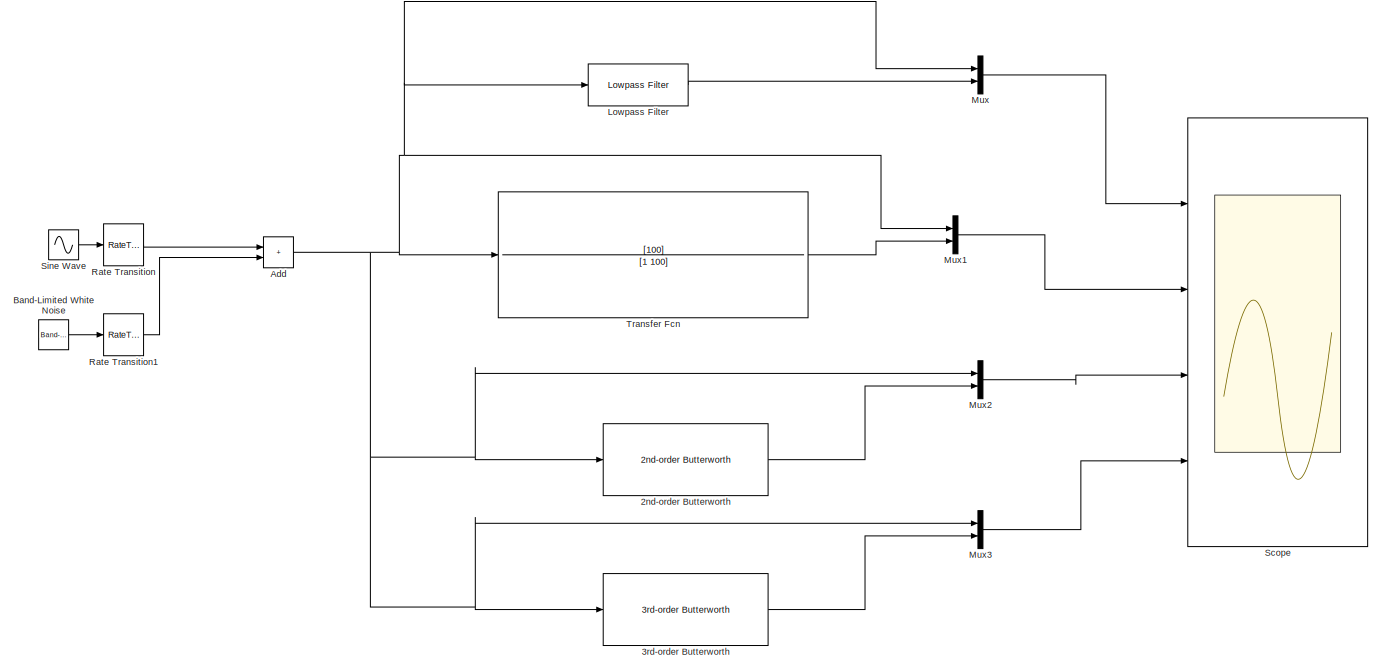
[diagram: root canvas - part 1/2, full width, top band]
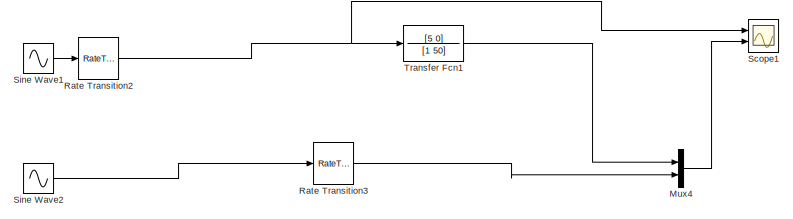
[diagram: root canvas - part 2/2, bottom center region]
MODEL slx_ac58851095d8
KIND model
CONFIG AbsTol = auto
CONFIG EnableMultiTasking = off
CONFIG FixedStep = auto
CONFIG MaxStep = auto
CONFIG MinStep = auto
CONFIG RelTol = 1e-3
CONFIG SampleTimeConstraint = Unconstrained
CONFIG SolverName = VariableStepAuto
CONFIG StartTime = 0.0
CONFIG StopTime = 5
BLOCK [Reference] 2nd-order Butterworth  REF=Butterworth/2nd-order Butterworth
  Ports = [1, 1]
  SourceBlock = Butterworth/2nd-order Butterworth
BLOCK [Reference] 3rd-order Butterworth  REF=Butterworth/3rd-order Butterworth
  Ports = [1, 1]
  SourceBlock = Butterworth/3rd-order Butterworth
BLOCK [Sum] Add
  IconShape = rectangular
  Ports = [2, 1]
BLOCK [Reference] Band-Limited White Noise  REF=simulink/Sources/Band-Limited
White Noise
  Ports = [0, 1]
  SourceBlock = simulink/Sources/Band-Limited\nWhite Noise
  SourceProductBaseCode = SL
  SourceType = Band-Limited White Noise.
BLOCK [Reference] Lowpass Filter  REF=dspfdesign/Lowpass Filter
  Ports = [1, 1]
  SourceBlock = dspfdesign/Lowpass Filter
  SourceProductBaseCode = DS
  SourceType = dsp.LowpassFilter
BLOCK [Mux] Mux
  DisplayOption = bar
  Inputs = 2
  Ports = [2, 1]
BLOCK [Mux] Mux1
  DisplayOption = bar
  Inputs = 2
  Ports = [2, 1]
BLOCK [Mux] Mux2
  DisplayOption = bar
  Inputs = 2
  Ports = [2, 1]
BLOCK [Mux] Mux3
  DisplayOption = bar
  Inputs = 2
  Ports = [2, 1]
BLOCK [Mux] Mux4
  DisplayOption = bar
  Inputs = 2
  Ports = [2, 1]
BLOCK [RateTransition] Rate Transition
  OutPortSampleTime = 1e-3
BLOCK [RateTransition] Rate Transition1
  OutPortSampleTime = 1e-3
BLOCK [RateTransition] Rate Transition2
  OutPortSampleTime = 1e-3
BLOCK [RateTransition] Rate Transition3
  OutPortSampleTime = 1e-3
BLOCK [Scope] Scope
  Floating = off
  NumInputPorts = 4
  Ports = [4]
  ScopeSpecificationString = Simulink.scopes.TimeScopeBlockCfg('CurrentConfiguration', extmgr.ConfigurationSet(extmgr.Configuration('Core','General UI',true),extmgr.Configuration('Core','Source UI',true),extmgr.Configuration('Sources','WiredSimulink',true),extmgr.Configuration('Visuals','Time Domain',true,'SerializedDisplays',{struct('MinYLimReal','-1.62151','MaxYLimReal','1.72877','YLabelReal','','MinYLimMag','0.00000','MaxY...<+3445ch>
BLOCK [Scope] Scope1
  Floating = off
  NumInputPorts = 2
  Ports = [2]
  ScopeSpecificationString = Simulink.scopes.TimeScopeBlockCfg('CurrentConfiguration', extmgr.ConfigurationSet(extmgr.Configuration('Core','General UI',true),extmgr.Configuration('Core','Source UI',true),extmgr.Configuration('Sources','WiredSimulink',true,'DataLoggingVariableName','ScopeData1'),extmgr.Configuration('Visuals','Time Domain',true,'SerializedDisplays',{struct('MinYLimReal','-1.25','MaxYLimReal','1.25','YLabelReal...<+2052ch>
BLOCK [Sin] Sine Wave
  Frequency = 10
  Ports = [0, 1]
  SampleTime = 1e-4
BLOCK [Sin] Sine Wave1
  Frequency = 10
  Ports = [0, 1]
  SampleTime = 1e-4
BLOCK [Sin] Sine Wave2
  Frequency = 10
  Phase = pi/2
  Ports = [0, 1]
  SampleTime = 1e-4
BLOCK [TransferFcn] Transfer Fcn
  Denominator = [1 100]
  Numerator = [100]
BLOCK [TransferFcn] Transfer Fcn1
  Denominator = [1 50]
  Numerator = [5 0]
LINE 2nd-order Butterworth:1 -> Mux2:2
LINE 3rd-order Butterworth:1 -> Mux3:2
NET Add:1 -> 2nd-order Butterworth:1, 3rd-order Butterworth:1, Lowpass Filter:1, Mux1:1, Mux2:1, Mux3:1, Mux:1, Transfer Fcn:1
LINE Band-Limited White Noise:1 -> Rate Transition1:1
LINE Lowpass Filter:1 -> Mux:2
LINE Mux1:1 -> Scope:2
LINE Mux2:1 -> Scope:3
LINE Mux3:1 -> Scope:4
LINE Mux4:1 -> Scope1:2
LINE Mux:1 -> Scope:1
LINE Rate Transition1:1 -> Add:2
NET Rate Transition2:1 -> Scope1:1, Transfer Fcn1:1
LINE Rate Transition3:1 -> Mux4:2
LINE Rate Transition:1 -> Add:1
LINE Sine Wave1:1 -> Rate Transition2:1
LINE Sine Wave2:1 -> Rate Transition3:1
LINE Sine Wave:1 -> Rate Transition:1
LINE Transfer Fcn1:1 -> Mux4:1
LINE Transfer Fcn:1 -> Mux1:2
note: NET lines group one-source signal fan-out (src -> all destinations, sorted); 1:1 wires keep LINE
